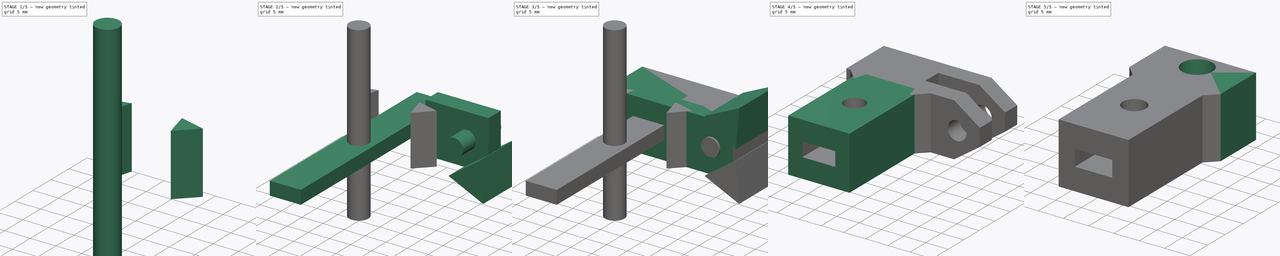
[diagram: build sequence overview — one tinted view per stage of 5, left to right]
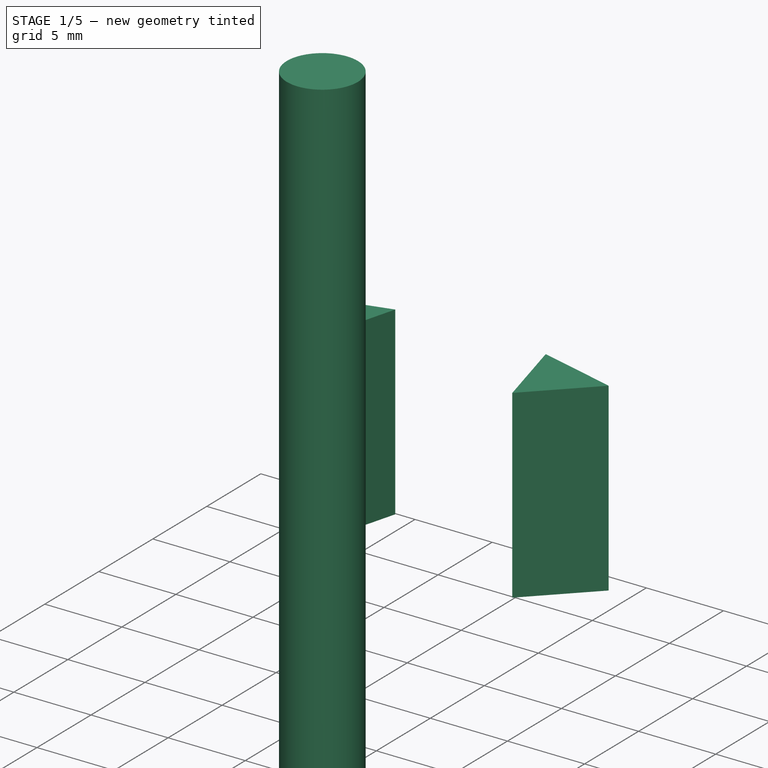
[diagram: stage 1 of 5 — iso view after this stage's code; geometry added in this stage tinted green]
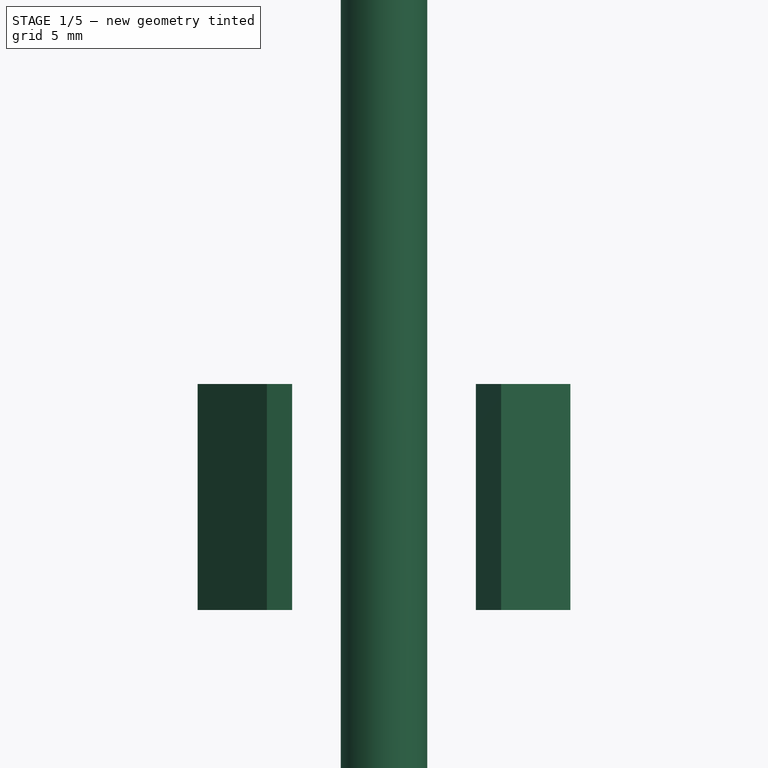
[diagram: stage 1 of 5 — front view after this stage's code; geometry added in this stage tinted green]
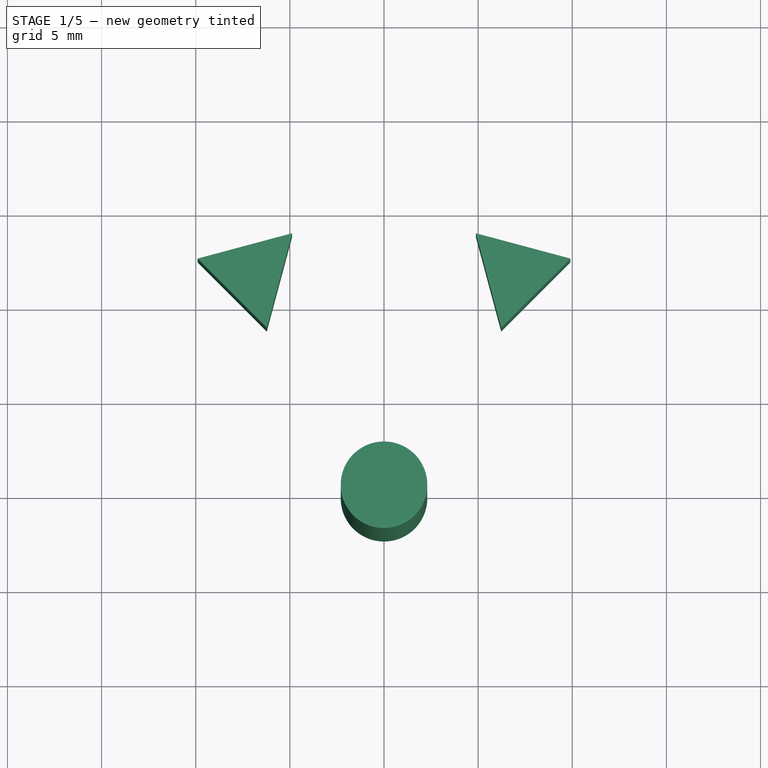
[diagram: stage 1 of 5 — top view after this stage's code; geometry added in this stage tinted green]
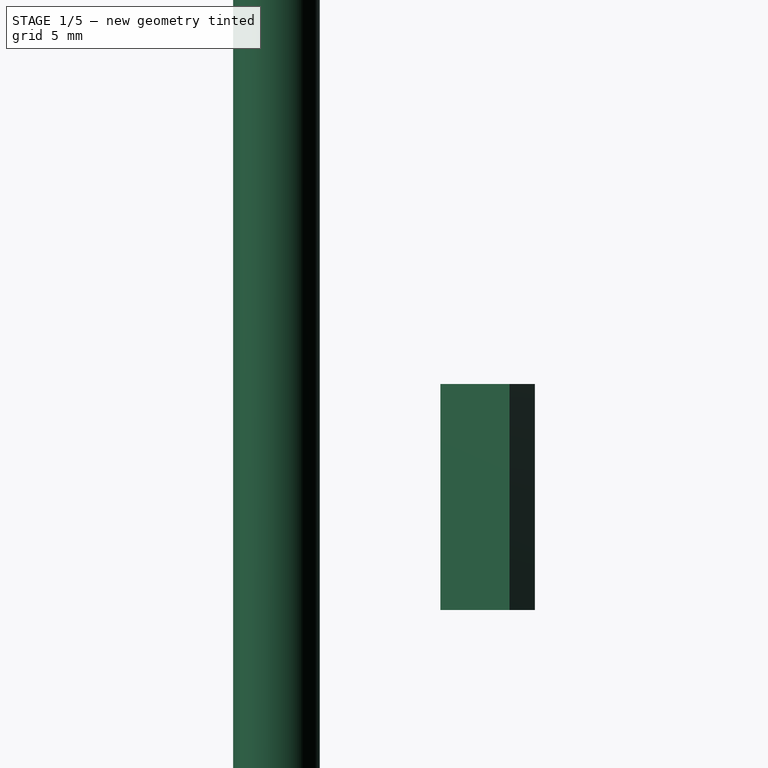
[diagram: stage 1 of 5 — right view after this stage's code; geometry added in this stage tinted green]
FCSTD DOCUMENT  (FreeCAD 0.19R23634 (Git))
Label: Stage-UpDown-Short
License: All rights reserved
LicenseURL: http://en.wikipedia.org/wiki/All_rights_reserved
objects: Part::Prism×4, Part::Box×4, Sketcher::SketchObject×3, Part::Cylinder×2, Part::MultiFuse×2, Part::Cut×1, PartDesign::FeatureBase×1, PartDesign::CoordinateSystem×1, PartDesign::Pocket×1, PartDesign::Pad×1, PartDesign::Hole×1, PartDesign::Body×1, App::Part×1
note: 25 computed .brp shape members not serialized (recipe doc carries the construction recipe); baked Part::Feature solids carry a one-line shape summary decoded from their .brp

FEATURE [Part::Prism] prism015
  AttacherType = Attacher::AttachEngine3D
  Circumradius = 3
  FirstAngle = 0
  Height = 12
  Placement = pos=(-7,51.6,60) rot=(0,0,-1;1.309rad)
  Polygon = 3
  SecondAngle = 0
FEATURE [Part::Prism] prism014
  AttacherType = Attacher::AttachEngine3D
  Circumradius = 3
  FirstAngle = 0
  Height = 12
  Placement = pos=(7,51.6,60) rot=(0,0,1;0.261799rad)
  Polygon = 3
  SecondAngle = 0
FEATURE [Part::Cylinder] cylinder013
  Angle = 360
  AttacherType = Attacher::AttachEngine3D
  Height = 41
  Placement = pos=(0,40,51.5) rot=(0,0,1;0rad)
  Radius = 2.3
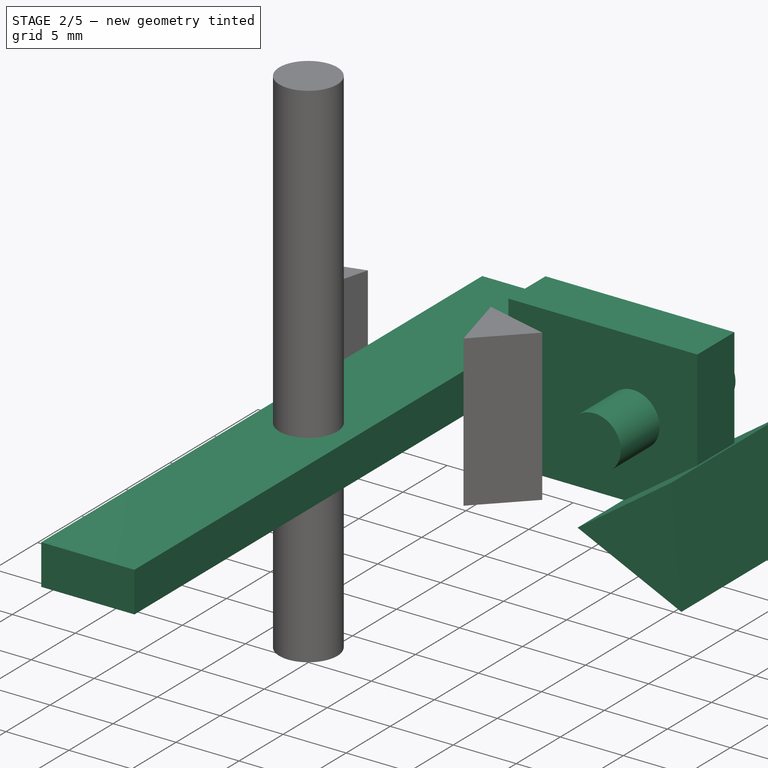
[diagram: stage 2 of 5 — iso view after this stage's code; geometry added in this stage tinted green]
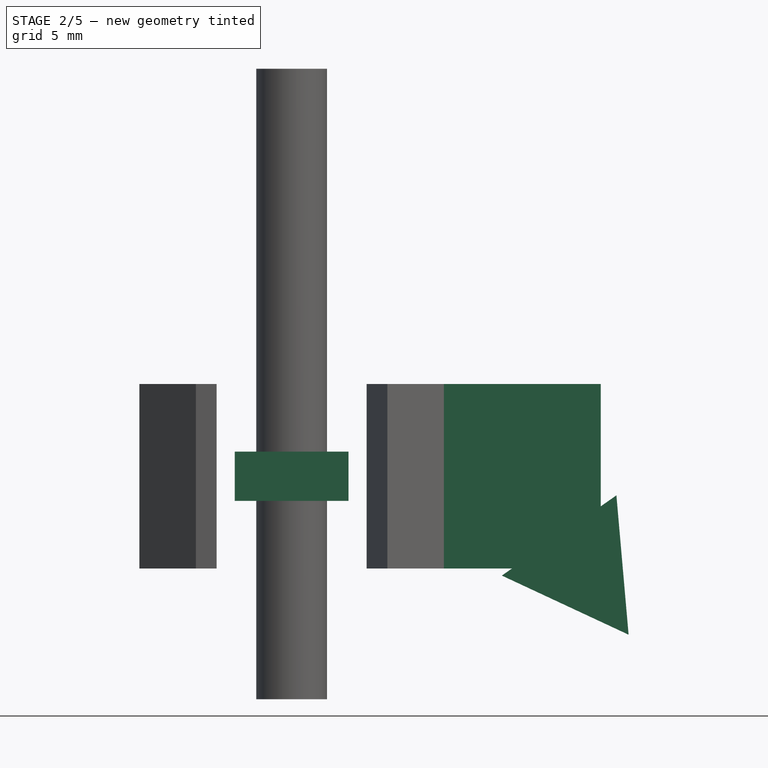
[diagram: stage 2 of 5 — front view after this stage's code; geometry added in this stage tinted green]
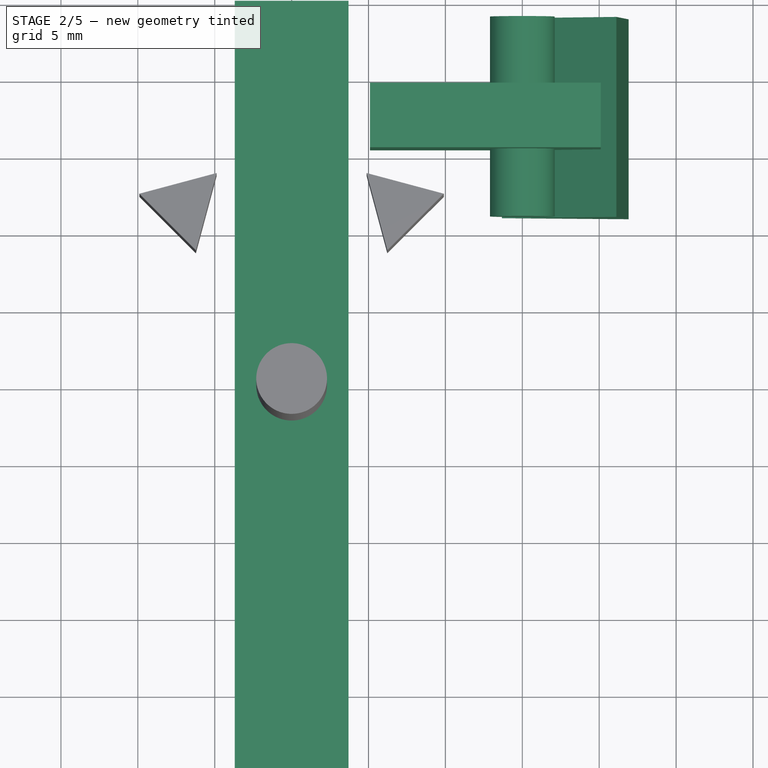
[diagram: stage 2 of 5 — top view after this stage's code; geometry added in this stage tinted green]
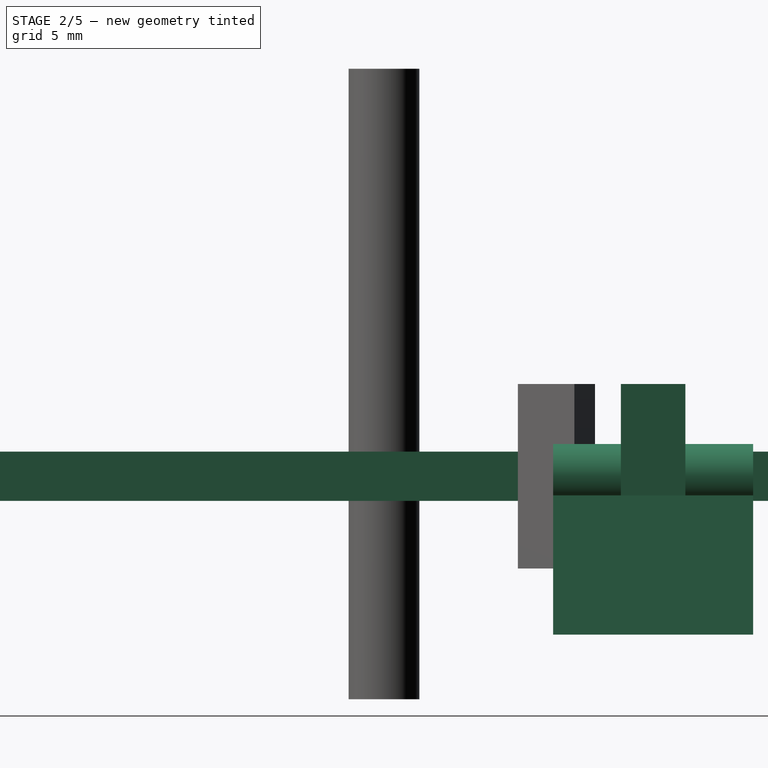
[diagram: stage 2 of 5 — right view after this stage's code; geometry added in this stage tinted green]
FEATURE [Part::Box] cube022
  AttacherType = Attacher::AttachEngine3D
  Height = 3.2
  Length = 7.4
  Placement = pos=(-3.7,15,64.4) rot=(0,0,1;0rad)
  Width = 50
FEATURE [Part::Cylinder] cylinder014
  Angle = 360
  AttacherType = Attacher::AttachEngine3D
  Height = 13
  Placement = pos=(15,64,66) rot=(1,0,0;1.5708rad)
  Radius = 2.1
FEATURE [Part::Box] cube023
  AttacherType = Attacher::AttachEngine3D
  Height = 12
  Length = 15
  Placement = pos=(5.1,55.4,60) rot=(0,0,1;0rad)
  Width = 4.2
FEATURE [Part::Prism] prism017
  AttacherType = Attacher::AttachEngine3D
  Circumradius = 5.25
  FirstAngle = 0
  Height = 13
  Placement = pos=(18.9,64,60) rot=(0.030858,0.70677,-0.70677;3.0799rad)
  Polygon = 3
  SecondAngle = 0
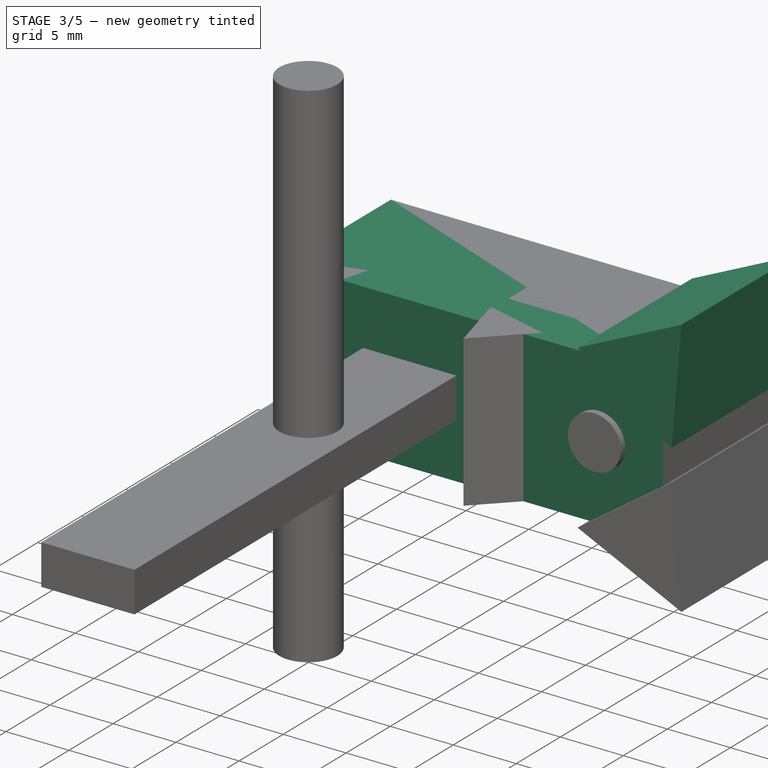
[diagram: stage 3 of 5 — iso view after this stage's code; geometry added in this stage tinted green]
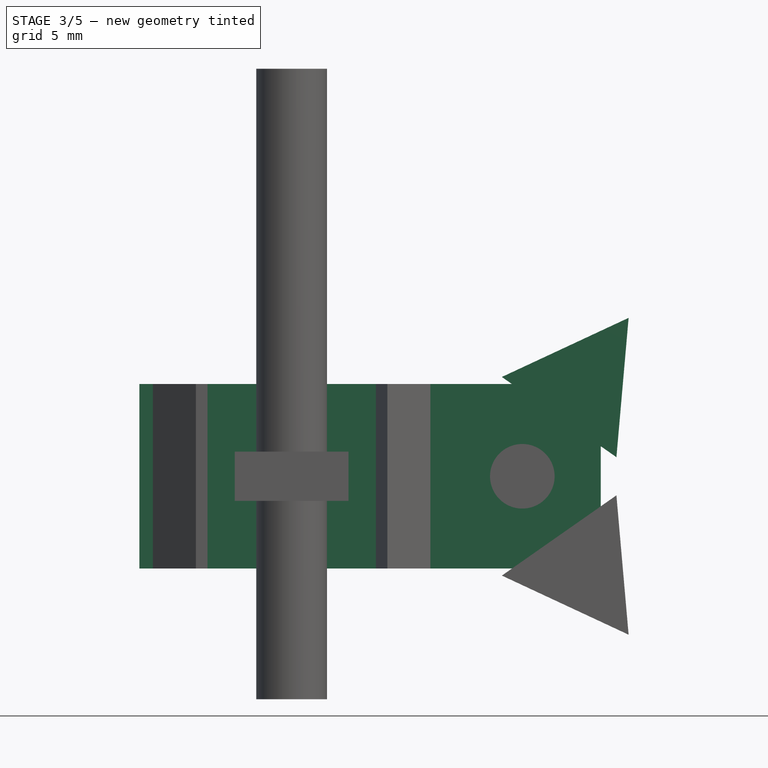
[diagram: stage 3 of 5 — front view after this stage's code; geometry added in this stage tinted green]
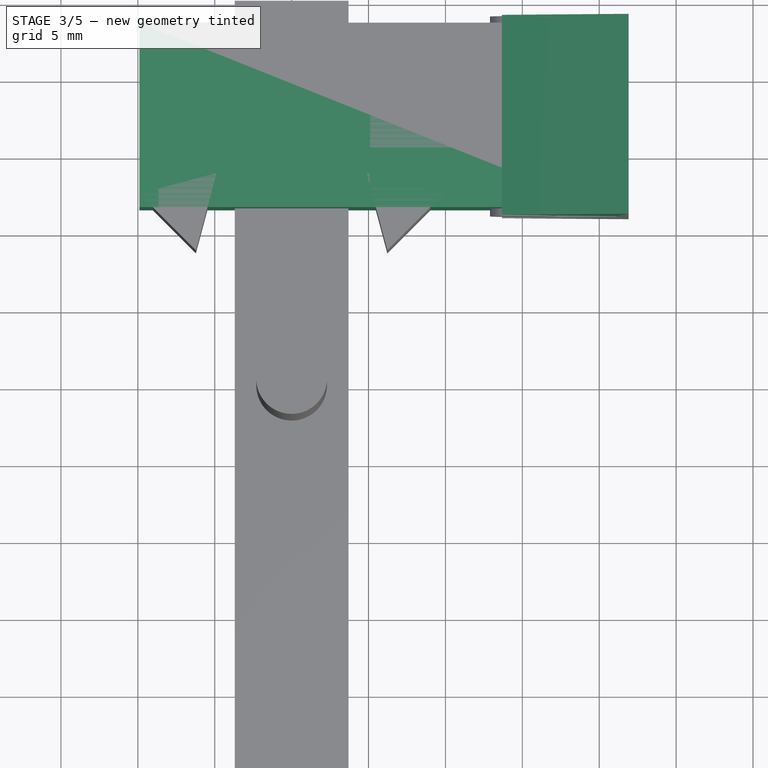
[diagram: stage 3 of 5 — top view after this stage's code; geometry added in this stage tinted green]
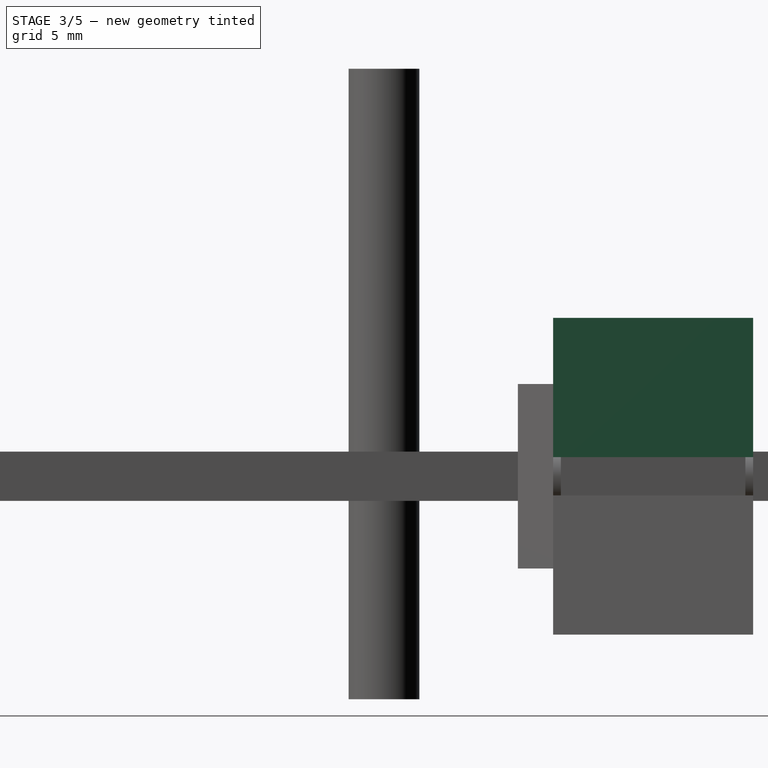
[diagram: stage 3 of 5 — right view after this stage's code; geometry added in this stage tinted green]
FEATURE [Part::Prism] prism016
  AttacherType = Attacher::AttachEngine3D
  Circumradius = 5.25
  FirstAngle = 0
  Height = 13
  Placement = pos=(18.9,64,72) rot=(0.742942,0.473306,-0.473306;1.86366rad)
  Polygon = 3
  SecondAngle = 0
FEATURE [Part::Box] cube021
  AttacherType = Attacher::AttachEngine3D
  Height = 12
  Length = 30
  Placement = pos=(-9.9,51.5,60) rot=(0,0,1;0rad)
  Width = 12
FEATURE [Part::MultiFuse] Group009
  Shapes = -> [cylinder013,cube022,cube023,cylinder014,prism016,prism017]
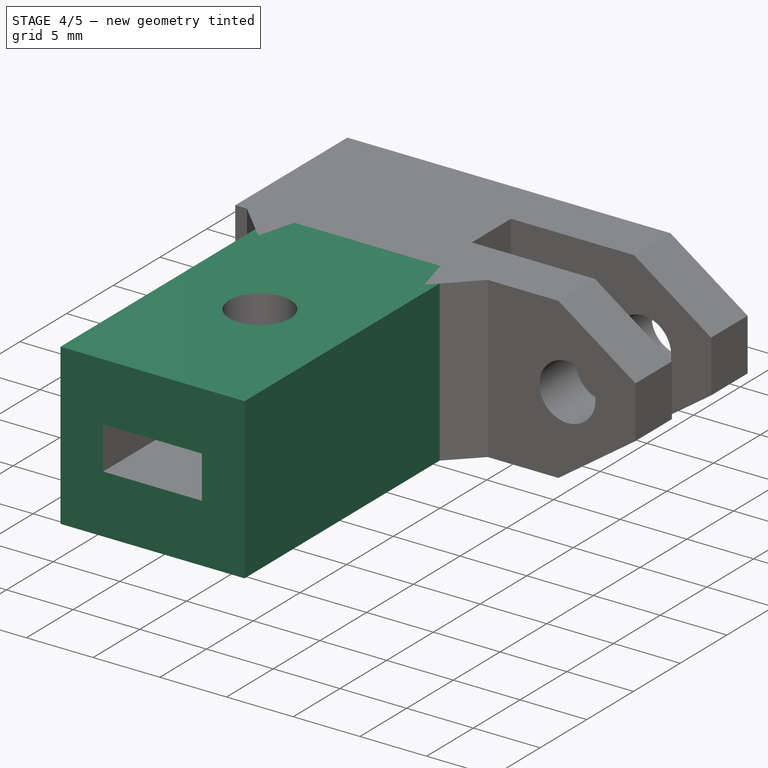
[diagram: stage 4 of 5 — iso view after this stage's code; geometry added in this stage tinted green]
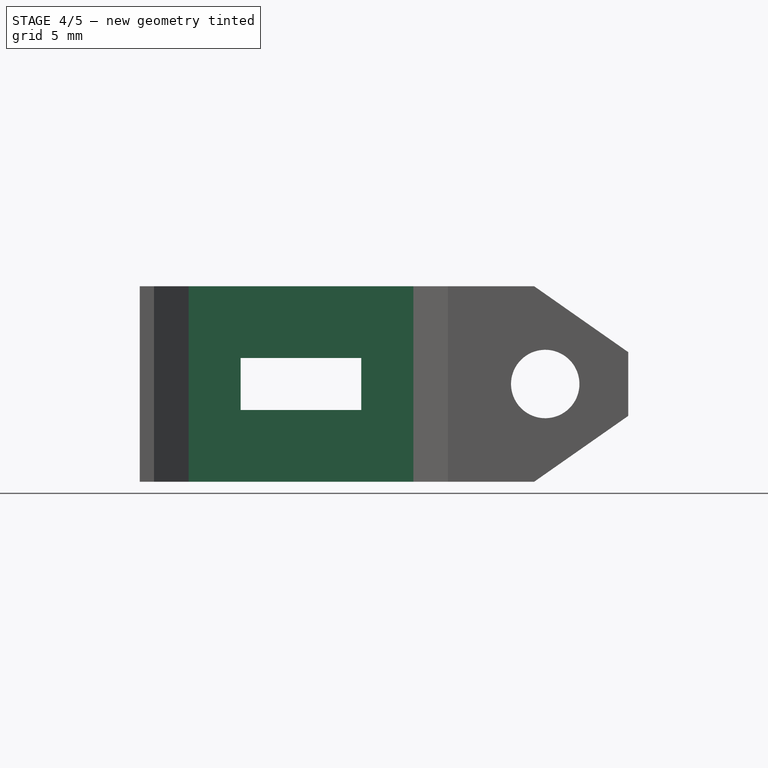
[diagram: stage 4 of 5 — front view after this stage's code; geometry added in this stage tinted green]
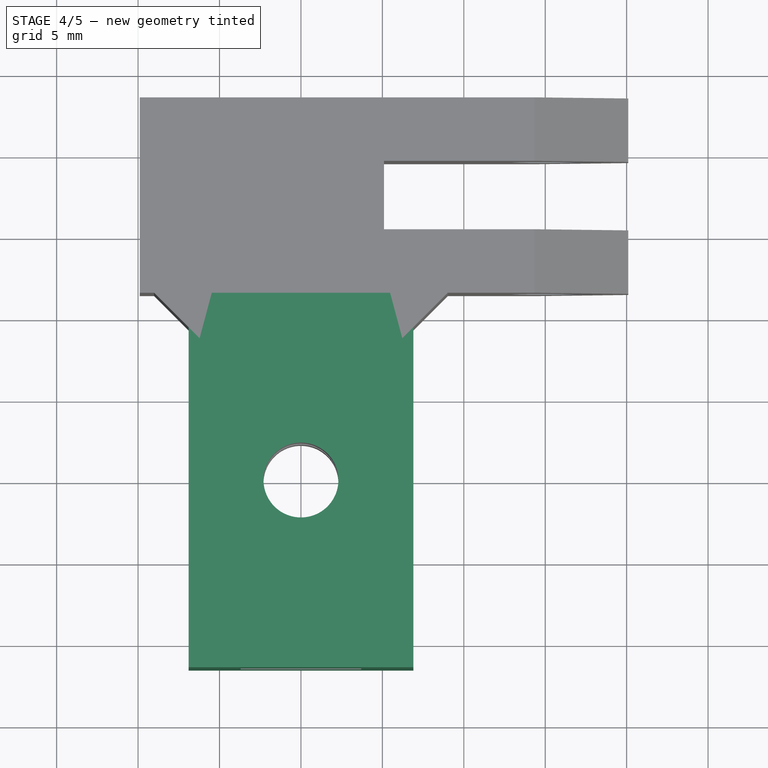
[diagram: stage 4 of 5 — top view after this stage's code; geometry added in this stage tinted green]
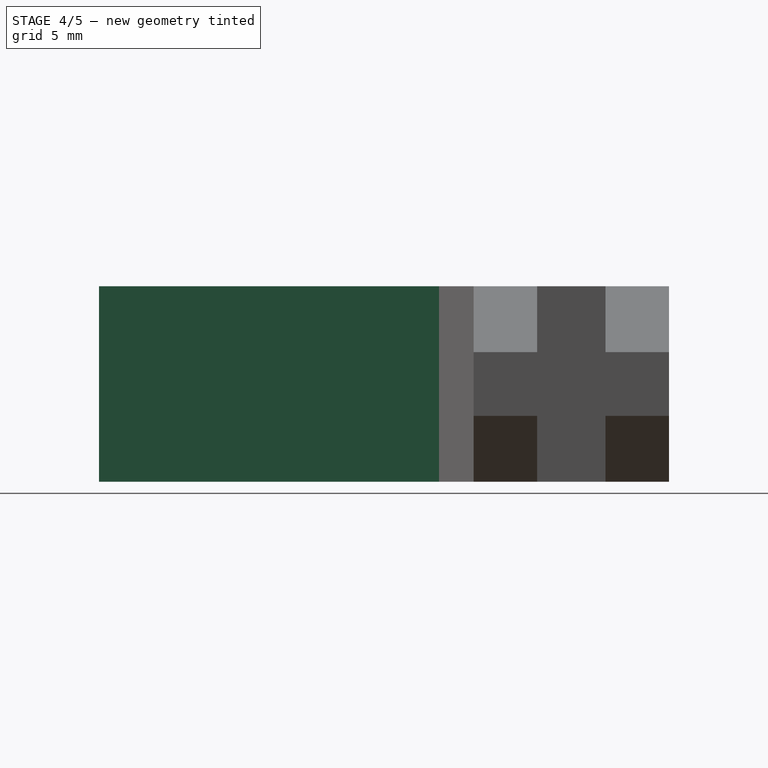
[diagram: stage 4 of 5 — right view after this stage's code; geometry added in this stage tinted green]
FEATURE [Part::Box] cube020
  AttacherType = Attacher::AttachEngine3D
  Height = 12
  Length = 13.8
  Placement = pos=(-6.9,28.5,60) rot=(0,0,1;0rad)
  Width = 23
FEATURE [Part::MultiFuse] Group008
  Shapes = -> [cube020,prism014,prism015,cube021]
FEATURE [Part::Cut] difference005
  Base = -> Group008
  Tool = -> Group009
FEATURE [PartDesign::FeatureBase] BaseFeature005
  BaseFeature = -> difference005
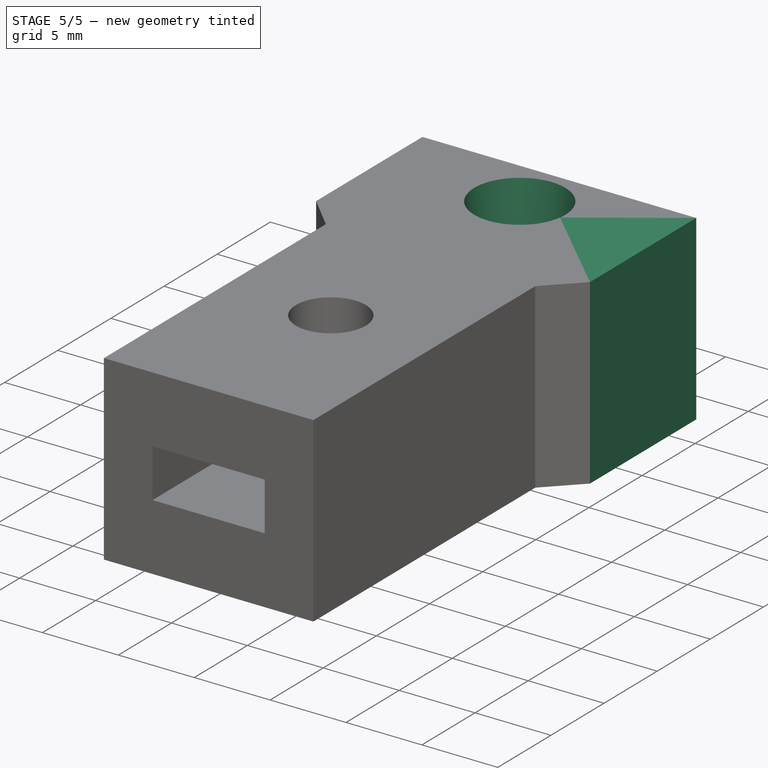
[diagram: stage 5 of 5 — iso view after this stage's code; geometry added in this stage tinted green]
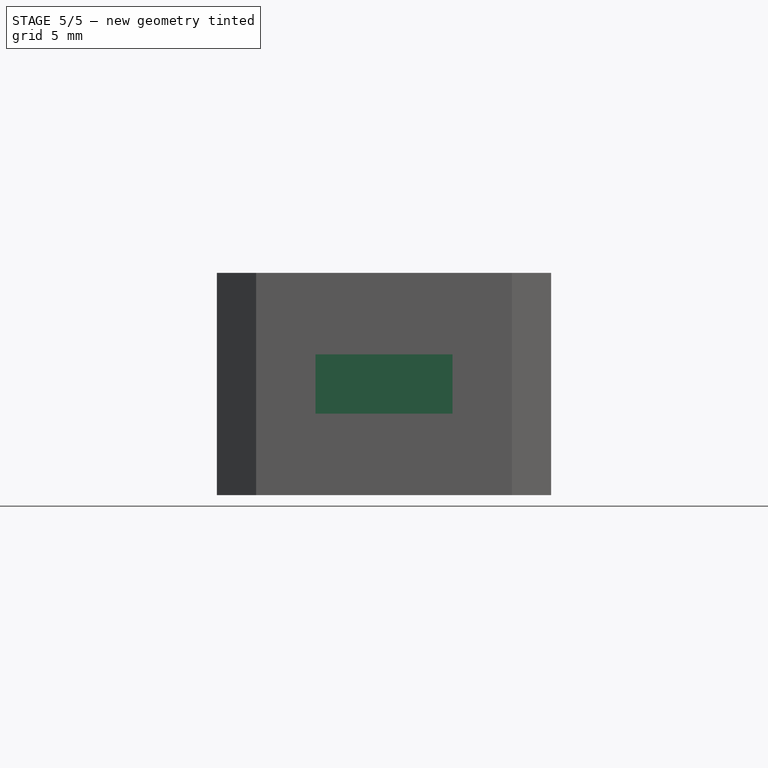
[diagram: stage 5 of 5 — front view after this stage's code; geometry added in this stage tinted green]
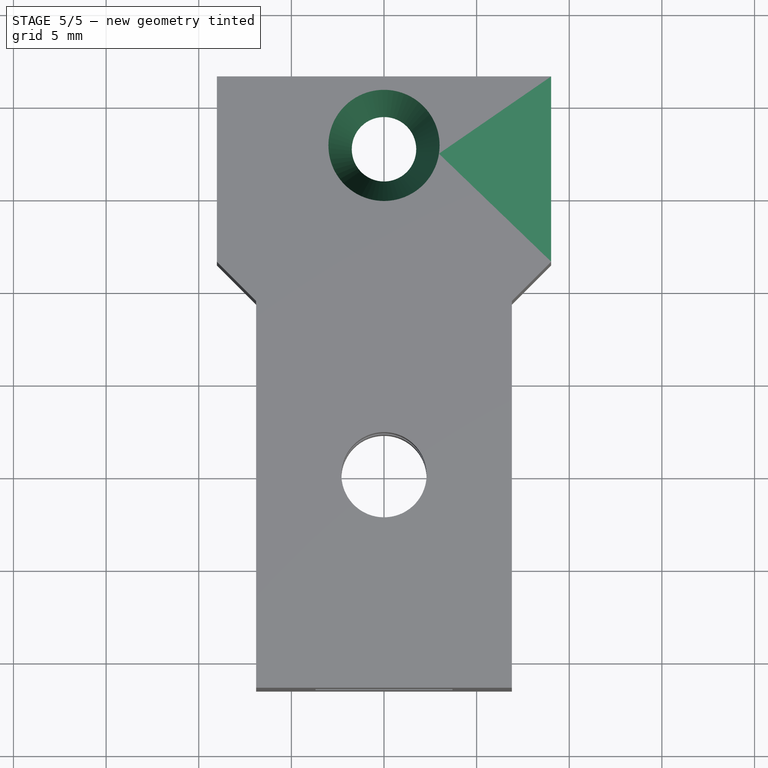
[diagram: stage 5 of 5 — top view after this stage's code; geometry added in this stage tinted green]
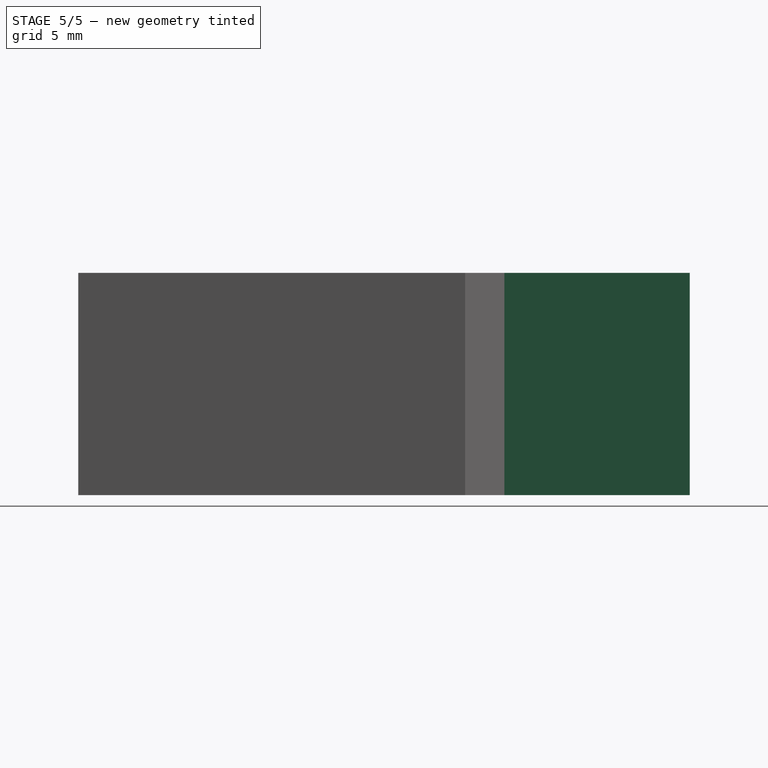
[diagram: stage 5 of 5 — right view after this stage's code; geometry added in this stage tinted green]
FEATURE [PartDesign::CoordinateSystem] LCS_0
  AttacherType = Attacher::AttachEngine3D
  MapMode = 45
  Placement = pos=(-4e-16,39.8093,60) rot=(0,0,1;0rad)
  Support = -> [BaseFeature005]
FEATURE [Sketcher::SketchObject] Sketch
  FullyConstrained = true
  MapMode = 5
  Placement = pos=(0,63.5,0) rot=(0,0.707107,0.707107;3.14159rad)
  Support = -> [BaseFeature005]
  sketch-geometry (4):
    g0: LineSegment StartX=-22.17 StartY=75.81 StartZ=0 EndX=15.53 EndY=75.81 EndZ=0
    g1: LineSegment StartX=15.53 StartY=75.81 StartZ=0 EndX=15.53 EndY=55.86 EndZ=0
    g2: LineSegment StartX=15.53 StartY=55.86 StartZ=0 EndX=-22.17 EndY=55.86 EndZ=0
    g3: LineSegment StartX=-22.17 StartY=55.86 StartZ=0 EndX=-22.17 EndY=75.81 EndZ=0
  constraints (12):
    c: Coincident(g0,g1)
    c: Coincident(g1,g2)
    c: Coincident(g2,g3)
    c: Coincident(g3,g0)
    c: Horizontal(g0)
    c: Horizontal(g2)
    c: Vertical(g1)
    c: Vertical(g3)
    c: Distance(g0) = 37.7
    c: Distance(g3) = 19.95
    c: DistanceX(g2) = -22.17
    c: DistanceY(g-1,g2) = 55.86
FEATURE [PartDesign::Pocket] Pocket
  BaseFeature = -> BaseFeature005
  Length = 12
  Length2 = 100
  Profile = -> Sketch
  Type = 0
FEATURE [Sketcher::SketchObject] Sketch001
  ExternalGeometry = -> [Pocket]
  FullyConstrained = true
  MapMode = 5
  Placement = pos=(0,51.5,0) rot=(0,0.707107,0.707107;3.14159rad)
  Support = -> [Pocket]
  sketch-geometry (4):
    g0: LineSegment StartX=-9.02132 StartY=72 StartZ=0 EndX=9.02132 EndY=72 EndZ=0
    g1: LineSegment StartX=9.02132 StartY=72 StartZ=0 EndX=9.02132 EndY=60 EndZ=0
    g2: LineSegment StartX=9.02132 StartY=60 StartZ=0 EndX=-9.02132 EndY=60 EndZ=0
    g3: LineSegment StartX=-9.02132 StartY=60 StartZ=0 EndX=-9.02132 EndY=72 EndZ=0
  constraints (10):
    c: Coincident(g0,g1)
    c: Coincident(g1,g2)
    c: Coincident(g2,g3)
    c: Coincident(g3,g0)
    c: Horizontal(g0)
    c: Horizontal(g2)
    c: Vertical(g1)
    c: Vertical(g3)
    c: Coincident(g0,g-3)
    c: Coincident(g1,g-5)
FEATURE [PartDesign::Pad] Pad
  BaseFeature = -> Pocket
  Direction = (1,1,1)
  Length = 10
  Length2 = 100
  Profile = -> Sketch001
  Type = 0
FEATURE [Sketcher::SketchObject] Sketch002
  ExternalGeometry = -> [Pad]
  FullyConstrained = true
  MapMode = 5
  Placement = pos=(0,1.6e-14,72) rot=(0,0,1;0rad)
  Support = -> [Pad]
  sketch-geometry (4):
    g0: LineSegment StartX=-9.02132 StartY=61.5 StartZ=0 EndX=5.47388 EndY=51.5 EndZ=0
    g1: LineSegment StartX=9.02132 StartY=61.5 StartZ=0 EndX=-5.47388 EndY=51.5 EndZ=0
    g2: GeomPoint X=1.8e-15 Y=55.2763 Z=0
    g3: Circle CenterX=0 CenterY=57.7763 CenterZ=0 NormalX=0 NormalY=0 NormalZ=1 AngleXU=0 Radius=2
  constraints (9):
    c: Coincident(g0,g-3)
    c: Coincident(g0,g-4)
    c: Coincident(g1,g-3)
    c: Coincident(g1,g-4)
    c: PointOnObject(g2,g0)
    c: PointOnObject(g2,g1)
    c: Diameter(g3) = 4
    c: PointOnObject(g3,g-2)
    c: DistanceY(g2,g3) = 2.5
FEATURE [PartDesign::Hole] Hole
  BaseFeature = -> Pad
  Depth = 25
  DepthType = 0
  Diameter = 6
  DrillPoint = 1
  DrillPointAngle = 118
  HoleCutCountersinkAngle = 90
  HoleCutDepth = 0
  HoleCutDiameter = 0
  HoleCutType = 0
  ModelActualThread = false
  Profile = -> Sketch002
  Tapered = true
  TaperedAngle = 84
  ThreadAngle = 0
  ThreadClass = 0
  ThreadCutOffInner = 0
  ThreadCutOffOuter = 0
  ThreadDirection = 0
  ThreadFit = 0
  ThreadPitch = 0
  ThreadSize = 0
  ThreadType = 0
  Threaded = false
FEATURE [PartDesign::Body] Body005  label="UpDown001"
  BaseFeature = -> difference005
  Group = -> [BaseFeature005,Sketch,Pocket,Sketch001,Pad,Sketch002,Hole]
  Origin = -> Origin005
  Tip = -> Hole
FEATURE [App::Part] UpDown
  Group = -> [LCS_0,cube021,cube020,prism016,cube023,prism017,cube022,cylinder014,Group008,Group009,prism015,prism014,difference005,cylinder013,Body005]
  Origin = -> Origin
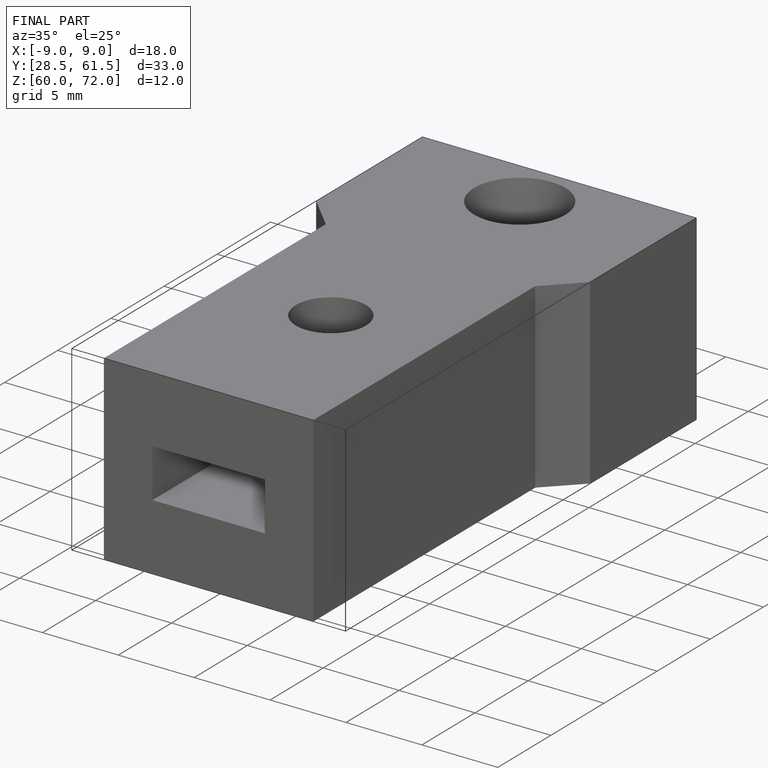
[diagram: finished part — iso view with bounding-box wireframe]
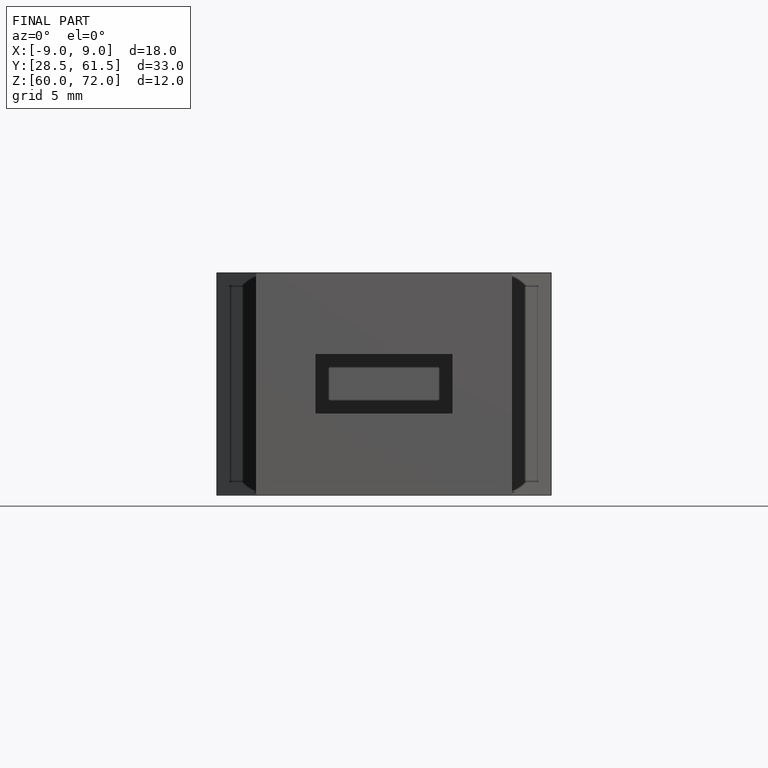
[diagram: finished part — front view with bounding-box wireframe]
